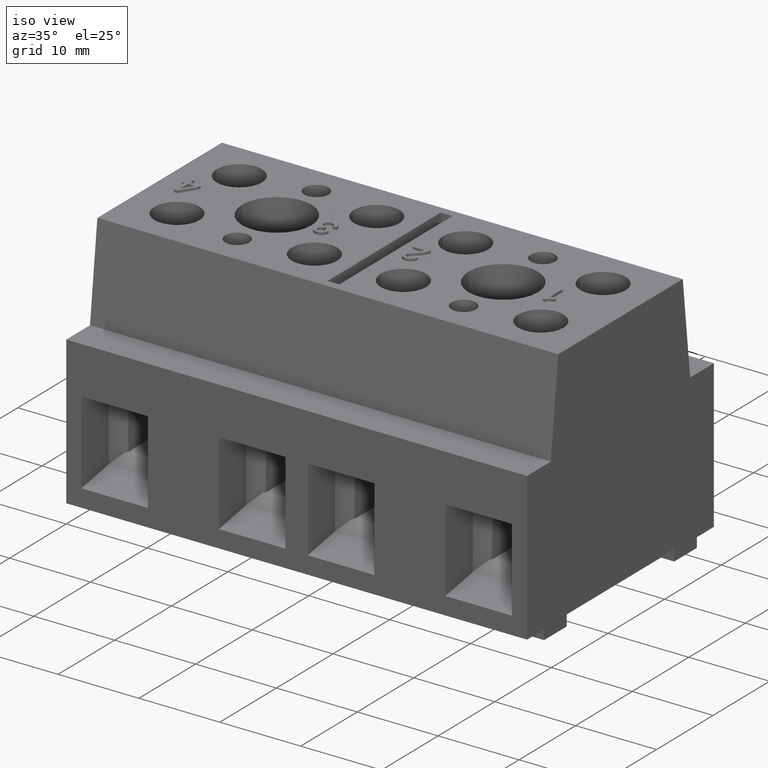
[diagram: clean part render]
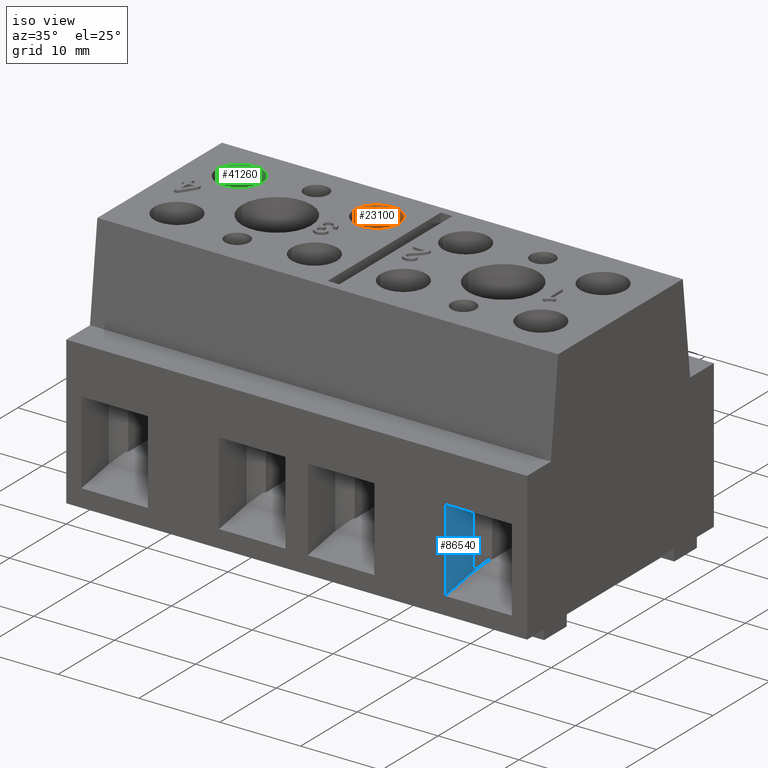
[diagram: same view with three faces highlighted in distinct colors, each labeled with its STEP entity id]
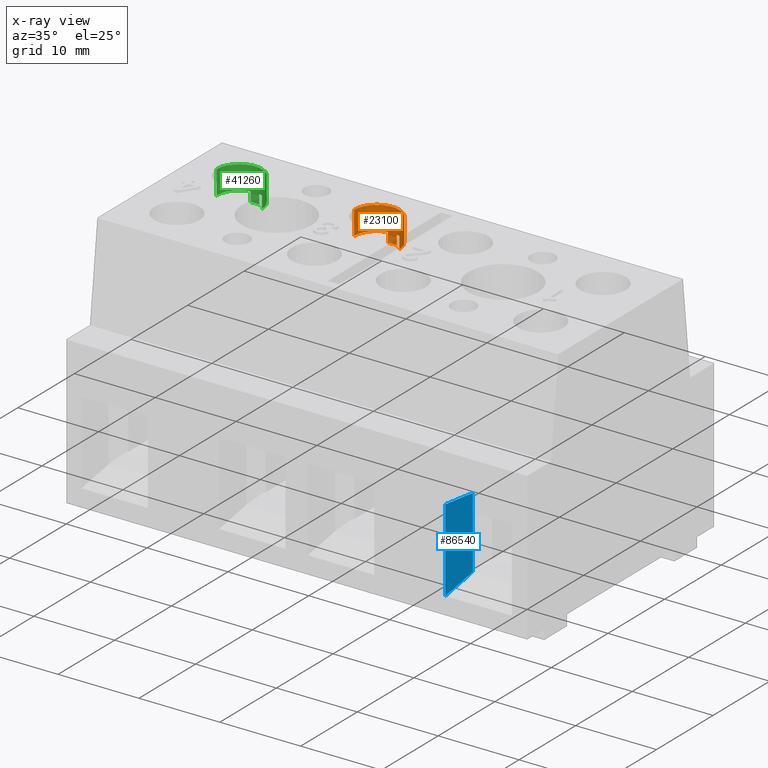
[diagram: x-ray of the same camera — body ghosted, the three highlighted faces saturated]
A machine part, iso view with three faces highlighted in distinct colors.
The next image is the same camera in x-ray (body ghosted, the three faces saturated) — at least one of them is partly hidden behind the body in this view.
Their STEP definitions:

[orange] entity #23100 — the highlighted cylindrical surface (edge-blend (fillet) strip) has radius 2.8 mm, axis along (0, 0, 1).
#360=CARTESIAN_POINT('',(70.7713182031141,1.08412096955471,35.));
#370=DIRECTION('',(1.,0.,0.));
#380=DIRECTION('',(0.,0.,1.));
#390=AXIS2_PLACEMENT_3D('',#360,#370,#380);
#400=CIRCLE('',#390,2.8);
#410=CARTESIAN_POINT('',(70.7713182031141,1.08412096955471,37.8));
#420=VERTEX_POINT('',#410);
#430=CARTESIAN_POINT('',(70.7713182031141,1.08412096955471,32.2));
#440=VERTEX_POINT('',#430);
#470=EDGE_CURVE('',#440,#420,#400,.T.);
#14470=CARTESIAN_POINT('',(67.8289368888558,1.08412096955471,35.));
#14480=DIRECTION('',(1.,0.,0.));
#14490=DIRECTION('',(0.,0.,1.));
#14500=AXIS2_PLACEMENT_3D('',#14470,#14480,#14490);
#14510=CIRCLE('',#14500,2.8);
#14520=CARTESIAN_POINT('',(67.8289368888558,1.08412096955471,37.8));
#14530=VERTEX_POINT('',#14520);
#14580=CARTESIAN_POINT('',(67.8289368888558,3.82957175221318,35.55));
#14590=VERTEX_POINT('',#14580);
#14600=EDGE_CURVE('',#14590,#14530,#14510,.T.);
#15660=CARTESIAN_POINT('',(66.6289368888558,3.82957175221318,34.45));
#15670=DIRECTION('',(1.,0.,0.));
#15680=VECTOR('',#15670,1.);
#15690=LINE('',#15660,#15680);
#15700=CARTESIAN_POINT('',(66.6289368888558,3.82957175221318,34.45));
#15710=VERTEX_POINT('',#15700);
#15720=CARTESIAN_POINT('',(67.8289368888558,3.82957175221318,34.45));
#15730=VERTEX_POINT('',#15720);
#15740=EDGE_CURVE('',#15710,#15730,#15690,.T.);
#22200=CARTESIAN_POINT('',(67.8289368888558,1.08412096955471,32.2));
#22210=VERTEX_POINT('',#22200);
#22220=EDGE_CURVE('',#22210,#15730,#14510,.T.);
#22720=CARTESIAN_POINT('',(66.6289368888558,1.08412096955471,35.));
#22730=DIRECTION('',(1.,0.,0.));
#22740=DIRECTION('',(0.,0.,1.));
#22750=AXIS2_PLACEMENT_3D('',#22720,#22730,#22740);
#22760=CYLINDRICAL_SURFACE('',#22750,2.8);
#22770=CARTESIAN_POINT('',(66.6289368888558,1.08412096955471,32.2));
#22780=DIRECTION('',(1.,0.,0.));
#22790=VECTOR('',#22780,1.);
#22800=LINE('',#22770,#22790);
#22810=EDGE_CURVE('',#22210,#440,#22800,.T.);
#22820=ORIENTED_EDGE('',*,*,#22810,.T.);
#22830=ORIENTED_EDGE('',*,*,#22220,.F.);
#22840=ORIENTED_EDGE('',*,*,#15740,.T.);
#22850=CARTESIAN_POINT('',(66.6289368888558,1.08412096955471,35.));
#22860=DIRECTION('',(1.,0.,0.));
#22870=DIRECTION('',(0.,0.,1.));
#22880=AXIS2_PLACEMENT_3D('',#22850,#22860,#22870);
#22890=CIRCLE('',#22880,2.8);
#22900=CARTESIAN_POINT('',(66.6289368888558,3.82957175221318,35.55));
#22910=VERTEX_POINT('',#22900);
#22920=EDGE_CURVE('',#15710,#22910,#22890,.T.);
#22930=ORIENTED_EDGE('',*,*,#22920,.F.);
#22940=CARTESIAN_POINT('',(66.6289368888558,3.82957175221318,35.55));
#22950=DIRECTION('',(1.,0.,0.));
#22960=VECTOR('',#22950,1.);
#22970=LINE('',#22940,#22960);
#22980=EDGE_CURVE('',#22910,#14590,#22970,.T.);
#22990=ORIENTED_EDGE('',*,*,#22980,.F.);
#23000=ORIENTED_EDGE('',*,*,#14600,.F.);
#23010=CARTESIAN_POINT('',(66.6289368888558,1.08412096955471,37.8));
#23020=DIRECTION('',(1.,0.,0.));
#23030=VECTOR('',#23020,1.);
#23040=LINE('',#23010,#23030);
#23050=EDGE_CURVE('',#14530,#420,#23040,.T.);
#23060=ORIENTED_EDGE('',*,*,#23050,.F.);
#23070=ORIENTED_EDGE('',*,*,#470,.T.);
#23080=EDGE_LOOP('',(#23070,#23060,#23000,#22990,#22930,#22840,#22830,
#22820));
#23090=FACE_OUTER_BOUND('',#23080,.T.);
#23100=ADVANCED_FACE('',(#23090),#22760,.F.);

[blue] entity #86540 — the highlighted planar face has unit normal (1, -0, -0).
#36750=CARTESIAN_POINT('',(43.1455405211958,-20.9158790304453,11.1));
#36760=VERTEX_POINT('',#36750);
#36910=CARTESIAN_POINT('',(53.3905235011274,-20.9158790304453,11.1));
#36920=VERTEX_POINT('',#36910);
#36950=CARTESIAN_POINT('',(-7.105427357601E-15,-20.9158790304453,11.1));
#36960=DIRECTION('',(-1.,0.,0.));
#36970=VECTOR('',#36960,1.);
#36980=LINE('',#36950,#36970);
#36990=EDGE_CURVE('',#36920,#36760,#36980,.T.);
#85030=CARTESIAN_POINT('',(52.8123778057632,-16.0658790304453,11.1));
#85040=VERTEX_POINT('',#85030);
#85070=CARTESIAN_POINT('',(50.8972399080942,0.,11.1));
#85080=DIRECTION('',(0.118367270859858,-0.992969883324358,0.));
#85090=VECTOR('',#85080,1.);
#85100=LINE('',#85070,#85090);
#85110=EDGE_CURVE('',#85040,#36920,#85100,.T.);
#85700=CARTESIAN_POINT('',(43.9963182031141,-16.0908790304453,11.1));
#85710=VERTEX_POINT('',#85700);
#85760=CARTESIAN_POINT('',(46.0526511092175,-4.42883560497982,11.1));
#85770=DIRECTION('',(-0.17364817766693,-0.984807753012208,0.));
#85780=VECTOR('',#85770,1.);
#85790=LINE('',#85760,#85780);
#85800=EDGE_CURVE('',#85710,#36760,#85790,.T.);
#86010=CARTESIAN_POINT('',(44.0213182031141,-16.0658790304453,11.1));
#86020=VERTEX_POINT('',#86010);
#86050=CARTESIAN_POINT('',(-7.105427357601E-15,-16.0658790304453,11.1));
#86060=DIRECTION('',(1.,-6.9726111936842E-32,0.));
#86070=VECTOR('',#86060,1.);
#86080=LINE('',#86050,#86070);
#86090=EDGE_CURVE('',#86020,#85040,#86080,.T.);
#86370=CARTESIAN_POINT('',(41.9713182031141,-19.8158790304453,11.1));
#86380=DIRECTION('',(-0.,-0.,-1.));
#86390=DIRECTION('',(0.,-1.,0.));
#86400=AXIS2_PLACEMENT_3D('',#86370,#86380,#86390);
#86410=PLANE('',#86400);
#86420=CARTESIAN_POINT('',(58.3213182031141,-1.7658790304453,11.1));
#86430=DIRECTION('',(0.707106781186548,0.707106781186547,0.));
#86440=VECTOR('',#86430,1.);
#86450=LINE('',#86420,#86440);
#86460=EDGE_CURVE('',#85710,#86020,#86450,.T.);
#86470=ORIENTED_EDGE('',*,*,#86460,.T.);
#86480=ORIENTED_EDGE('',*,*,#85800,.F.);
#86490=ORIENTED_EDGE('',*,*,#36990,.T.);
#86500=ORIENTED_EDGE('',*,*,#85110,.T.);
#86510=ORIENTED_EDGE('',*,*,#86090,.T.);
#86520=EDGE_LOOP('',(#86510,#86500,#86490,#86480,#86470));
#86530=FACE_OUTER_BOUND('',#86520,.T.);
#86540=ADVANCED_FACE('',(#86530),#86410,.T.);

[green] entity #41260 — the highlighted cylindrical surface (edge-blend (fillet) strip) has radius 2.8 mm, axis along (0, 0, 1).
#210=CARTESIAN_POINT('',(70.7713182031141,1.08412096955471,52.));
#220=DIRECTION('',(1.,0.,0.));
#230=DIRECTION('',(0.,0.,1.));
#240=AXIS2_PLACEMENT_3D('',#210,#220,#230);
#250=CIRCLE('',#240,2.8);
#260=CARTESIAN_POINT('',(70.7713182031141,1.08412096955471,54.8));
#270=VERTEX_POINT('',#260);
#280=CARTESIAN_POINT('',(70.7713182031141,1.08412096955471,49.2));
#290=VERTEX_POINT('',#280);
#320=EDGE_CURVE('',#290,#270,#250,.T.);
#40470=CARTESIAN_POINT('',(66.6289368888558,3.82957175221318,51.45));
#40480=VERTEX_POINT('',#40470);
#40510=CARTESIAN_POINT('',(66.6289368888558,3.82957175221318,51.45));
#40520=DIRECTION('',(1.,0.,0.));
#40530=VECTOR('',#40520,1.);
#40540=LINE('',#40510,#40530);
#40550=CARTESIAN_POINT('',(67.8289368888558,3.82957175221318,51.45));
#40560=VERTEX_POINT('',#40550);
#40570=EDGE_CURVE('',#40480,#40560,#40540,.T.);
#40750=CARTESIAN_POINT('',(66.6289368888558,1.08412096955471,52.));
#40760=DIRECTION('',(1.,0.,0.));
#40770=DIRECTION('',(0.,0.,1.));
#40780=AXIS2_PLACEMENT_3D('',#40750,#40760,#40770);
#40790=CYLINDRICAL_SURFACE('',#40780,2.8);
#40800=CARTESIAN_POINT('',(66.6289368888558,1.08412096955471,49.2));
#40810=DIRECTION('',(1.,0.,0.));
#40820=VECTOR('',#40810,1.);
#40830=LINE('',#40800,#40820);
#40840=CARTESIAN_POINT('',(67.8289368888558,1.08412096955471,49.2));
#40850=VERTEX_POINT('',#40840);
#40860=EDGE_CURVE('',#40850,#290,#40830,.T.);
#40870=ORIENTED_EDGE('',*,*,#40860,.T.);
#40880=CARTESIAN_POINT('',(67.8289368888558,1.08412096955471,52.));
#40890=DIRECTION('',(1.,0.,0.));
#40900=DIRECTION('',(0.,0.,1.));
#40910=AXIS2_PLACEMENT_3D('',#40880,#40890,#40900);
#40920=CIRCLE('',#40910,2.8);
#40930=EDGE_CURVE('',#40850,#40560,#40920,.T.);
#40940=ORIENTED_EDGE('',*,*,#40930,.F.);
#40950=ORIENTED_EDGE('',*,*,#40570,.T.);
#40960=CARTESIAN_POINT('',(66.6289368888558,1.08412096955471,52.));
#40970=DIRECTION('',(1.,0.,0.));
#40980=DIRECTION('',(0.,0.,1.));
#40990=AXIS2_PLACEMENT_3D('',#40960,#40970,#40980);
#41000=CIRCLE('',#40990,2.8);
#41010=CARTESIAN_POINT('',(66.6289368888558,3.82957175221318,52.55));
#41020=VERTEX_POINT('',#41010);
#41030=EDGE_CURVE('',#40480,#41020,#41000,.T.);
#41040=ORIENTED_EDGE('',*,*,#41030,.F.);
#41050=CARTESIAN_POINT('',(66.6289368888558,3.82957175221318,52.55));
#41060=DIRECTION('',(1.,0.,0.));
#41070=VECTOR('',#41060,1.);
#41080=LINE('',#41050,#41070);
#41090=CARTESIAN_POINT('',(67.8289368888558,3.82957175221318,52.55));
#41100=VERTEX_POINT('',#41090);
#41110=EDGE_CURVE('',#41020,#41100,#41080,.T.);
#41120=ORIENTED_EDGE('',*,*,#41110,.F.);
#41130=CARTESIAN_POINT('',(67.8289368888558,1.08412096955471,54.8));
#41140=VERTEX_POINT('',#41130);
#41150=EDGE_CURVE('',#41100,#41140,#40920,.T.);
#41160=ORIENTED_EDGE('',*,*,#41150,.F.);
#41170=CARTESIAN_POINT('',(66.6289368888558,1.08412096955471,54.8));
#41180=DIRECTION('',(1.,0.,0.));
#41190=VECTOR('',#41180,1.);
#41200=LINE('',#41170,#41190);
#41210=EDGE_CURVE('',#41140,#270,#41200,.T.);
#41220=ORIENTED_EDGE('',*,*,#41210,.F.);
#41230=ORIENTED_EDGE('',*,*,#320,.T.);
#41240=EDGE_LOOP('',(#41230,#41220,#41160,#41120,#41040,#40950,#40940,
#40870));
#41250=FACE_OUTER_BOUND('',#41240,.T.);
#41260=ADVANCED_FACE('',(#41250),#40790,.F.);